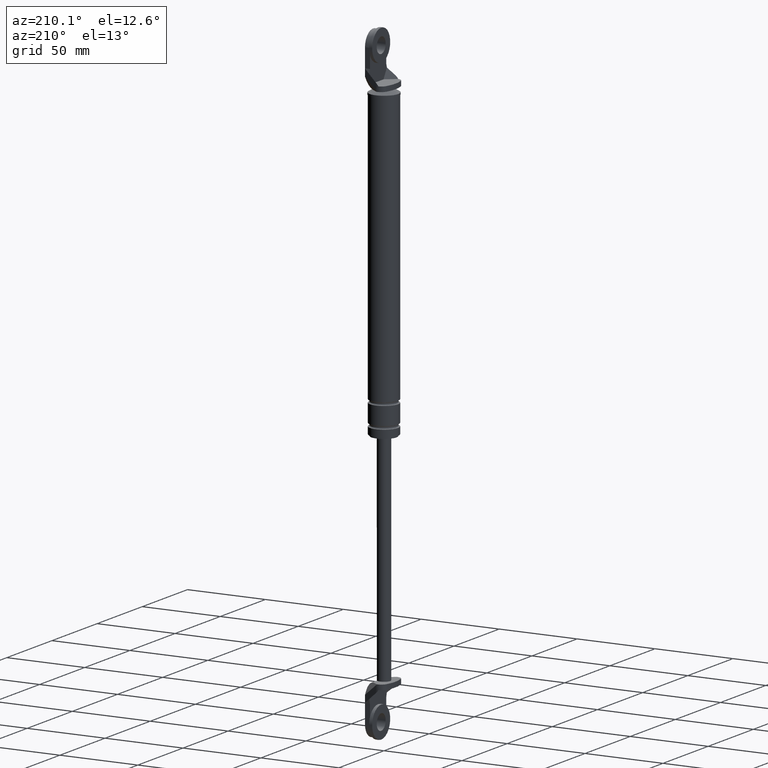
[diagram: clean part render]
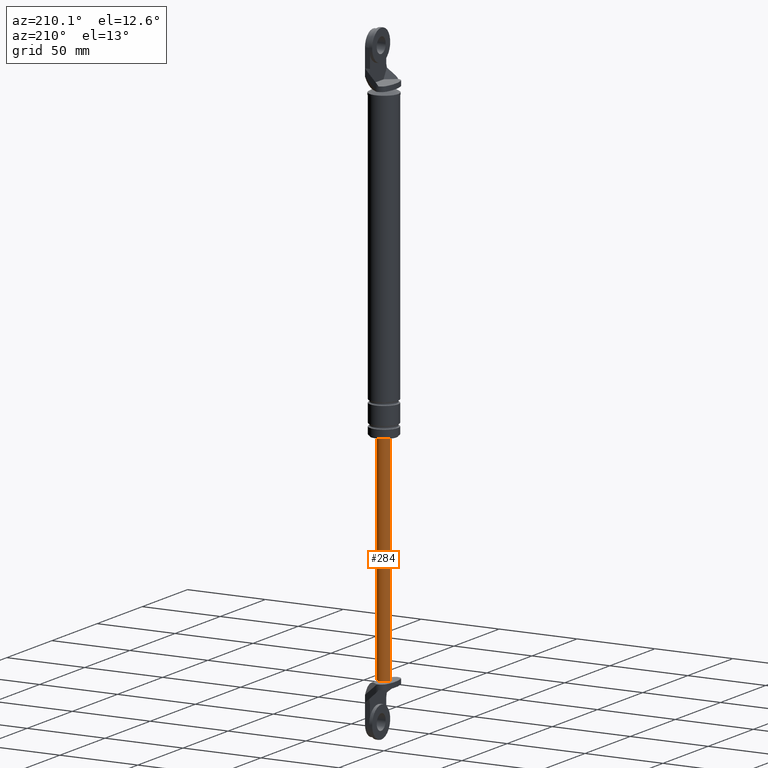
[diagram: same view with one face highlighted and labeled with its STEP entity id]
A machine part, auxiliary view. The second image highlights one B-rep face of the part: STEP entity #284.
In plain terms, the highlighted cylindrical surface (edge-blend (fillet) strip) has radius 4 mm, axis along (0, 0, 1).
Its self-contained STEP definition (entity closure, byte-faithful):
#284=ADVANCED_FACE('',(#1097),#1096,.T.);
#1096=CYLINDRICAL_SURFACE('',#1755,4.00000000000E+000);
#1097=FACE_OUTER_BOUND('',#1756,.T.);
#1752=CARTESIAN_POINT('',(0.00000000000E+000,3.58204186421E-014,0.00000000000E+000));
#1753=DIRECTION('',(-0.00000000000E+000,-0.00000000000E+000,1.00000000000E+000));
#1754=DIRECTION('',(1.00000000000E+000,-0.00000000000E+000,-0.00000000000E+000));
#1755=AXIS2_PLACEMENT_3D('',#1752,#1753,#1754);
#1756=EDGE_LOOP('',(#2148,#2149,#2150,#2151,#2152));
#2148=ORIENTED_EDGE('',*,*,#2350,.T.);
#2149=ORIENTED_EDGE('',*,*,#2354,.F.);
#2150=ORIENTED_EDGE('',*,*,#2338,.F.);
#2151=ORIENTED_EDGE('',*,*,#2342,.F.);
#2152=ORIENTED_EDGE('',*,*,#2355,.T.);
#2338=EDGE_CURVE('',#3206,#3556,#3557,.T.);
#2342=EDGE_CURVE('',#3575,#3206,#3582,.T.);
#2350=EDGE_CURVE('',#3627,#3626,#3634,.T.);
#2354=EDGE_CURVE('',#3556,#3626,#3658,.T.);
#2355=EDGE_CURVE('',#3575,#3627,#3664,.T.);
#3206=VERTEX_POINT('',#4192);
#3556=VERTEX_POINT('',#4400);
#3557=CIRCLE('',#4404,4.00000000000E+000);
#3575=VERTEX_POINT('',#4412);
#3582=CIRCLE('',#4420,4.00000000000E+000);
#3626=VERTEX_POINT('',#4444);
#3627=VERTEX_POINT('',#4445);
#3634=CIRCLE('',#4453,4.00000000000E+000);
#3658=(BOUNDED_CURVE() B_SPLINE_CURVE(1,(#4462,#4463),.UNSPECIFIED.,.F.,.F.) B_SPLINE_CURVE_WITH_KNOTS((2,2),(6.28930816424E-002,9.37106918113E-001),.UNSPECIFIED.) CURVE() GEOMETRIC_REPRESENTATION_ITEM() RATIONAL_B_SPLINE_CURVE((1.00000000000E+000,1.00000000000E+000)) REPRESENTATION_ITEM('') );
#3664=(BOUNDED_CURVE() B_SPLINE_CURVE(1,(#4464,#4465),.UNSPECIFIED.,.F.,.F.) B_SPLINE_CURVE_WITH_KNOTS((2,2),(6.28930817610E-002,9.37106918239E-001),.UNSPECIFIED.) CURVE() GEOMETRIC_REPRESENTATION_ITEM() RATIONAL_B_SPLINE_CURVE((7.50000000000E-001,7.50000000000E-001)) REPRESENTATION_ITEM('') );
#4192=CARTESIAN_POINT('',(2.00000000000E+000,3.46410161514E+000,-2.48000015000E+002));
#4400=CARTESIAN_POINT('',(4.00000000000E+000,3.83397017837E-014,-2.48000015000E+002));
#4401=CARTESIAN_POINT('',(0.00000000000E+000,3.58204186421E-014,-2.48000015000E+002));
#4402=DIRECTION('',(0.00000000000E+000,0.00000000000E+000,-1.00000000000E+000));
#4403=DIRECTION('',(5.00000000000E-001,8.66025403784E-001,0.00000000000E+000));
#4404=AXIS2_PLACEMENT_3D('',#4401,#4402,#4403);
#4412=CARTESIAN_POINT('',(-4.00000000000E+000,4.22452490058E-014,-2.48000015000E+002));
#4417=CARTESIAN_POINT('',(0.00000000000E+000,3.58204186421E-014,-2.48000015000E+002));
#4418=DIRECTION('',(0.00000000000E+000,0.00000000000E+000,-1.00000000000E+000));
#4419=DIRECTION('',(1.00000000000E+000,-0.00000000000E+000,-0.00000000000E+000));
#4420=AXIS2_PLACEMENT_3D('',#4417,#4418,#4419);
#4444=CARTESIAN_POINT('',(4.00000000000E+000,3.64153152077E-014,-1.09000015000E+002));
#4445=CARTESIAN_POINT('',(-4.00000000000E+000,3.58204186421E-014,-1.09000015000E+002));
#4450=CARTESIAN_POINT('',(0.00000000000E+000,3.58204186421E-014,-1.09000015000E+002));
#4451=DIRECTION('',(-0.00000000000E+000,0.00000000000E+000,-1.00000000000E+000));
#4452=DIRECTION('',(-1.00000000000E+000,-1.22460635382E-016,0.00000000000E+000));
#4453=AXIS2_PLACEMENT_3D('',#4450,#4451,#4452);
#4462=CARTESIAN_POINT('',(4.00000000000E+000,3.58204186421E-014,-2.48000015019E+002));
#4463=CARTESIAN_POINT('',(4.00000000000E+000,3.58204186421E-014,-1.09000015020E+002));
#4464=CARTESIAN_POINT('',(-4.00000000000E+000,3.58231962612E-014,-2.48000015000E+002));
#4465=CARTESIAN_POINT('',(-4.00000000000E+000,3.58231962612E-014,-1.09000015000E+002));